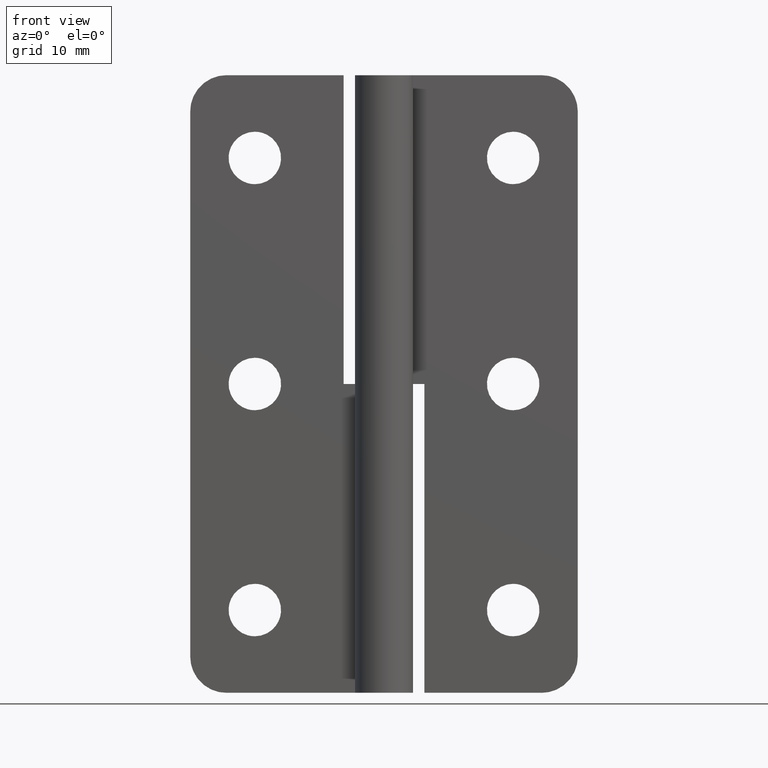
[diagram: clean part render]
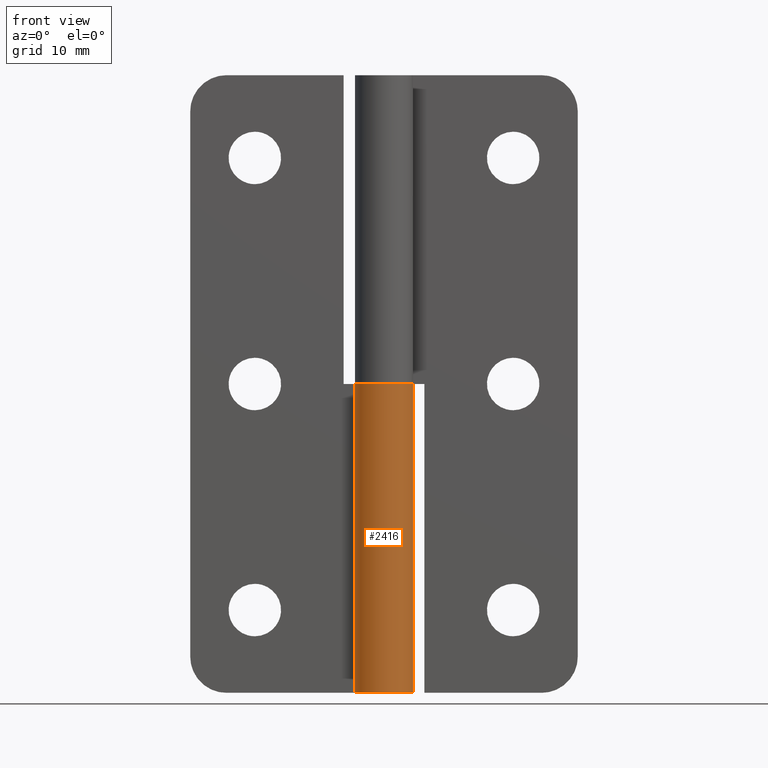
[diagram: same view with one face highlighted and labeled with its STEP entity id]
A machine part, front view. The second image highlights one B-rep face of the part: STEP entity #2416.
In plain terms, the highlighted face is a freeform B-spline surface patch.
Its self-contained STEP definition (entity closure, byte-faithful):
#2131=CARTESIAN_POINT('',(-3.026135952000170,1.950004000000000,38.250000000000000));
#2132=VERTEX_POINT('',#2131);
#2138=CARTESIAN_POINT('',(0.0,3.600002000000000,38.250000000000000));
#2139=VERTEX_POINT('',#2138);
#2140=CARTESIAN_POINT('',(0.0,3.600002000000000,38.250000000000000));
#2141=CARTESIAN_POINT('',(2.797448051540886,3.600002000000000,38.250000000000000));
#2142=CARTESIAN_POINT('',(3.488447798500211,0.889239201308082,38.250000000000000));
#2143=CARTESIAN_POINT('',(4.179447545459535,-1.821523597383837,38.250000000000000));
#2144=CARTESIAN_POINT('',(1.723368228208353,-3.160698712311252,38.250000000000000));
#2145=CARTESIAN_POINT('',(-0.732711089042829,-4.499873827238666,38.250000000000000));
#2146=CARTESIAN_POINT('',(-2.637066834372012,-2.450692333006976,38.250000000000000));
#2147=CARTESIAN_POINT('',(-4.541422579701196,-0.401510838775285,38.250000000000000));
#2148=CARTESIAN_POINT('',(-3.026135952000173,1.950004000000002,38.250000000000000));
#2156=(BOUNDED_CURVE()B_SPLINE_CURVE(2,(#2140,#2141,#2142,#2143,#2144,#2145,#2146,#2147,#2148),.UNSPECIFIED.,.F.,.U.)B_SPLINE_CURVE_WITH_KNOTS((3,2,2,2,3),(0.0,0.250000000000000,0.500000000000000,0.750000000000000,1.0),.UNSPECIFIED.)CURVE()GEOMETRIC_REPRESENTATION_ITEM()RATIONAL_B_SPLINE_CURVE((1.0,0.789623566018660,1.0,0.789623566018660,1.0,0.789623566018660,1.0,0.789623566018660,1.0))REPRESENTATION_ITEM(''));
#2157=EDGE_CURVE('',#2139,#2132,#2156,.T.);
#2323=CARTESIAN_POINT('',(6.615317E-015,3.600002000000000,0.0));
#2324=VERTEX_POINT('',#2323);
#2330=CARTESIAN_POINT('',(-3.026135952000170,1.950004000000000,0.0));
#2331=VERTEX_POINT('',#2330);
#2332=CARTESIAN_POINT('',(0.0,3.600002000000000,0.0));
#2333=CARTESIAN_POINT('',(2.797448051540889,3.600002000000000,0.0));
#2334=CARTESIAN_POINT('',(3.488447798500212,0.889239201308078,0.0));
#2335=CARTESIAN_POINT('',(4.179447545459532,-1.821523597383841,0.0));
#2336=CARTESIAN_POINT('',(1.723368228208350,-3.160698712311253,0.0));
#2337=CARTESIAN_POINT('',(-0.732711089042831,-4.499873827238664,0.0));
#2338=CARTESIAN_POINT('',(-2.637066834372012,-2.450692333006976,0.0));
#2339=CARTESIAN_POINT('',(-4.541422579701196,-0.401510838775284,0.0));
#2340=CARTESIAN_POINT('',(-3.026135952000173,1.950004000000002,0.0));
#2348=(BOUNDED_CURVE()B_SPLINE_CURVE(2,(#2332,#2333,#2334,#2335,#2336,#2337,#2338,#2339,#2340),.UNSPECIFIED.,.F.,.U.)B_SPLINE_CURVE_WITH_KNOTS((3,2,2,2,3),(0.0,0.250000000000000,0.500000000000000,0.750000000000000,1.0),.UNSPECIFIED.)CURVE()GEOMETRIC_REPRESENTATION_ITEM()RATIONAL_B_SPLINE_CURVE((1.0,0.789623566018659,1.0,0.789623566018659,1.0,0.789623566018659,1.0,0.789623566018659,1.0))REPRESENTATION_ITEM(''));
#2349=EDGE_CURVE('',#2324,#2331,#2348,.T.);
#2380=CARTESIAN_POINT('',(-0.094237066262239,3.598768369226655,-0.956250000000001));
#2381=CARTESIAN_POINT('',(-0.094237066262239,3.598768369226655,39.230156250000007));
#2382=CARTESIAN_POINT('',(4.376399515170861,3.715836108112399,-0.956249999999999));
#2383=CARTESIAN_POINT('',(4.376399515170861,3.715836108112399,39.230156250000000));
#2384=CARTESIAN_POINT('',(3.535843018050410,-0.676630291745913,-0.956250000000001));
#2385=CARTESIAN_POINT('',(3.535843018050410,-0.676630291745913,39.230156250000007));
#2386=CARTESIAN_POINT('',(2.695286520929959,-5.069096691604225,-0.956249999999999));
#2387=CARTESIAN_POINT('',(2.695286520929959,-5.069096691604225,39.230156250000000));
#2388=CARTESIAN_POINT('',(-1.416266388894140,-3.309713570037858,-0.956250000000001));
#2389=CARTESIAN_POINT('',(-1.416266388894140,-3.309713570037858,39.230156250000007));
#2390=CARTESIAN_POINT('',(-5.527819298718240,-1.550330448471490,-0.956249999999999));
#2391=CARTESIAN_POINT('',(-5.527819298718240,-1.550330448471490,39.230156250000000));
#2392=CARTESIAN_POINT('',(-2.930817494313782,2.090531801965296,-0.956250000000001));
#2393=CARTESIAN_POINT('',(-2.930817494313782,2.090531801965296,39.230156250000007));
#2401=(BOUNDED_SURFACE()B_SPLINE_SURFACE(1,2,((#2380,#2382,#2384,#2386,#2388,#2390,#2392),(#2381,#2383,#2385,#2387,#2389,#2391,#2393)),.UNSPECIFIED.,.F.,.F.,.U.)B_SPLINE_SURFACE_WITH_KNOTS((2,2),(3,2,2,3),(0.0,40.186406250000012),(0.0,6.894178184934751,13.788356369869501,20.682534554804249),.UNSPECIFIED.)GEOMETRIC_REPRESENTATION_ITEM()RATIONAL_B_SPLINE_SURFACE(((1.0,0.627057105746662,1.0,0.627057105746662,1.0,0.627057105746662,1.0),(1.0,0.627057105746662,1.0,0.627057105746662,1.0,0.627057105746662,1.0)))REPRESENTATION_ITEM('')SURFACE());
#2402=CARTESIAN_POINT('',(6.615317E-015,3.600002000000000,0.0));
#2403=CARTESIAN_POINT('',(0.0,3.600002000000000,38.250000000000000));
#2404=QUASI_UNIFORM_CURVE('',1,(#2402,#2403),.UNSPECIFIED.,.F.,.U.);
#2405=EDGE_CURVE('',#2324,#2139,#2404,.T.);
#2406=ORIENTED_EDGE('',*,*,#2405,.T.);
#2407=ORIENTED_EDGE('',*,*,#2157,.T.);
#2408=CARTESIAN_POINT('',(-3.026135952000170,1.950004000000000,0.0));
#2409=CARTESIAN_POINT('',(-3.026135952000170,1.950004000000000,38.250000000000000));
#2410=QUASI_UNIFORM_CURVE('',1,(#2408,#2409),.UNSPECIFIED.,.F.,.U.);
#2411=EDGE_CURVE('',#2331,#2132,#2410,.T.);
#2412=ORIENTED_EDGE('',*,*,#2411,.F.);
#2413=ORIENTED_EDGE('',*,*,#2349,.F.);
#2414=EDGE_LOOP('',(#2406,#2407,#2412,#2413));
#2415=FACE_OUTER_BOUND('',#2414,.T.);
#2416=ADVANCED_FACE('',(#2415),#2401,.T.);